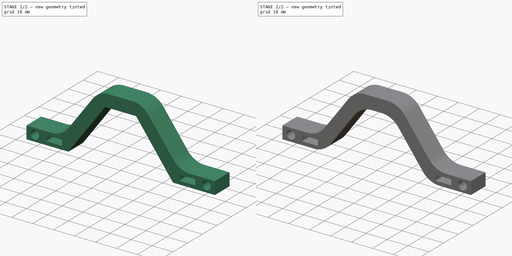
[diagram: build sequence overview — one tinted view per stage of 2, left to right]
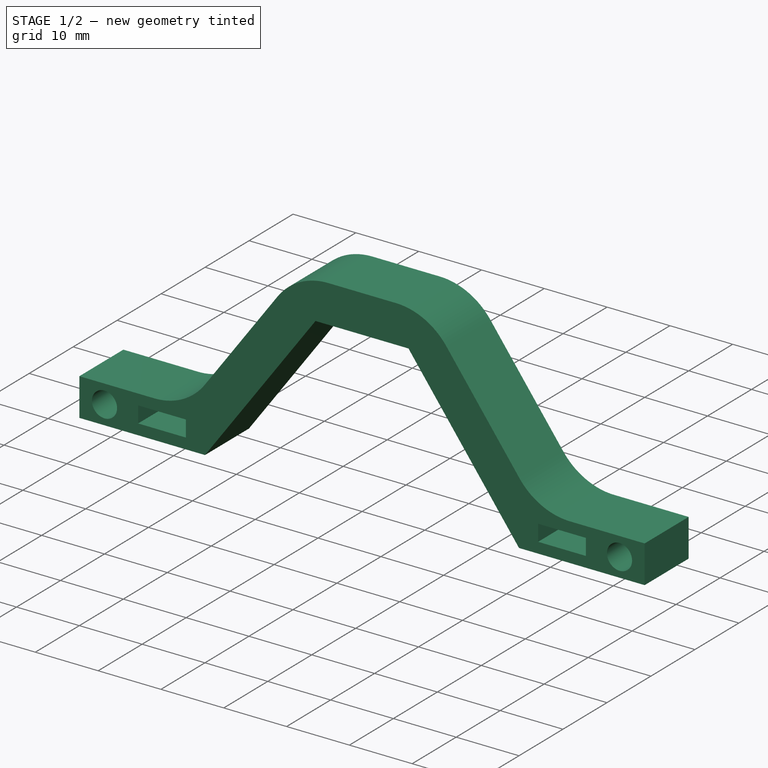
[diagram: stage 1 of 2 — iso view after this stage's code; geometry added in this stage tinted green]
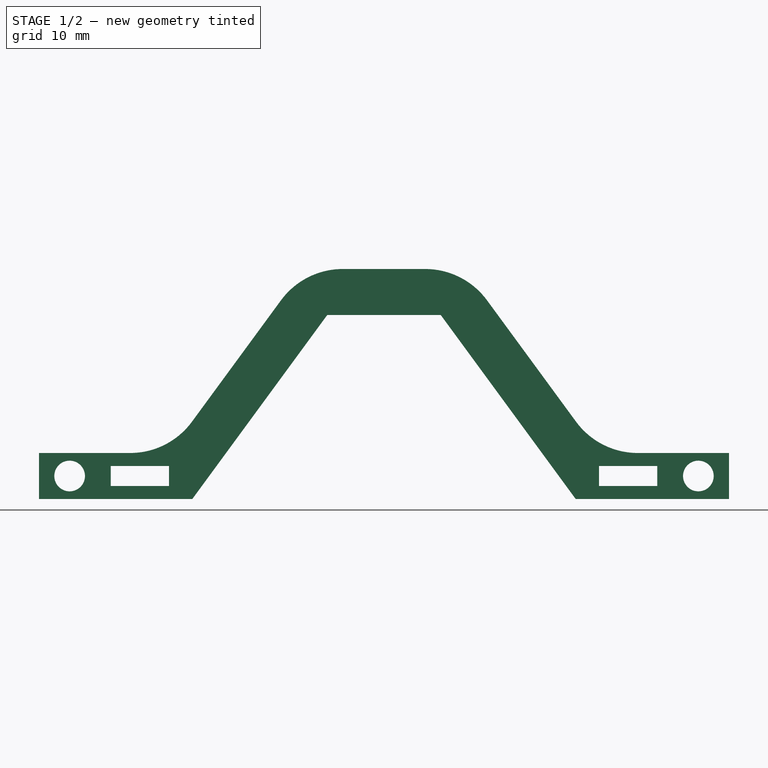
[diagram: stage 1 of 2 — front view after this stage's code; geometry added in this stage tinted green]
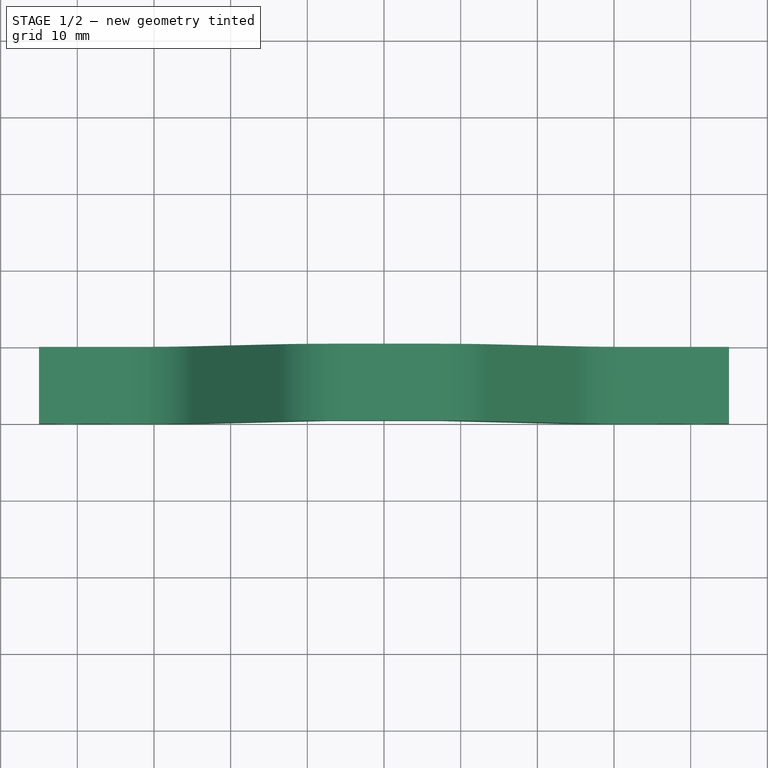
[diagram: stage 1 of 2 — top view after this stage's code; geometry added in this stage tinted green]
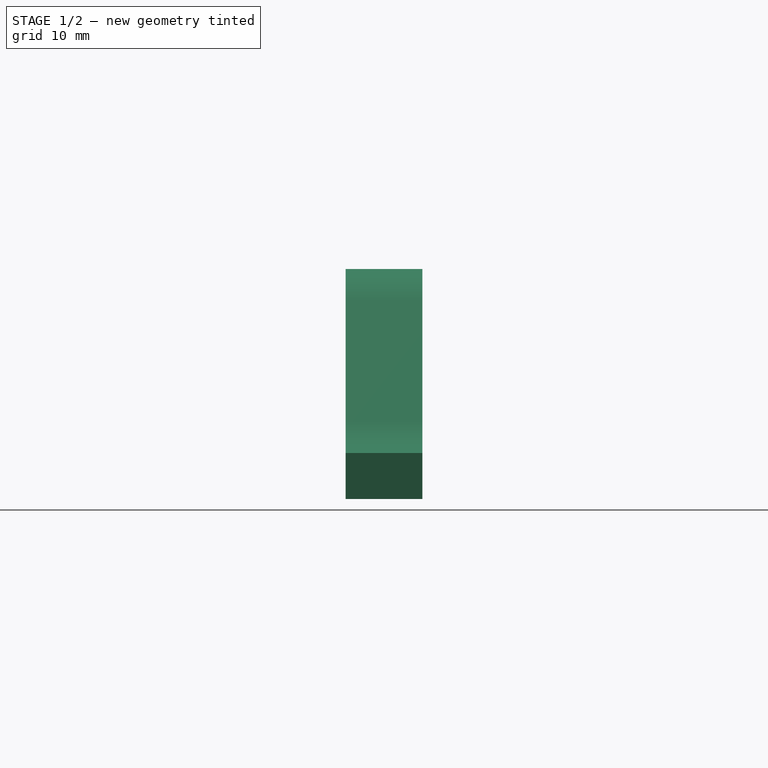
[diagram: stage 1 of 2 — right view after this stage's code; geometry added in this stage tinted green]
FCSTD DOCUMENT  (FreeCAD 1.0R38641 +678 (Git))
Label: support_Arduino_Pendule
License: All rights reserved
LicenseURL: https://en.wikipedia.org/wiki/All_rights_reserved
objects: PartDesign::Fillet×2, Sketcher::SketchObject×1, PartDesign::Pad×1, PartDesign::Body×1
note: 12 computed .brp shape members not serialized (recipe doc carries the construction recipe); baked Part::Feature solids carry a one-line shape summary decoded from their .brp

FEATURE [Sketcher::SketchObject] Sketch
  ArcFitTolerance = 1e-06
  AttachmentSupport = -> [XZ_Plane]
  FullyConstrained = true
  MakeInternals = false
  MapMode = 5
  Placement = pos=(0,0,0) rot=(1,0,0;1.5708rad)
  sketch-geometry (22):
    g0: LineSegment StartX=10.4404 StartY=30 StartZ=0 EndX=28.0404 EndY=6 EndZ=0
    g1: LineSegment StartX=28.0404 StartY=6 StartZ=0 EndX=45 EndY=6 EndZ=0
    g2: LineSegment StartX=45 StartY=6 StartZ=0 EndX=45 EndY=0 EndZ=0
    g3: LineSegment StartX=45 StartY=0 StartZ=0 EndX=25 EndY=0 EndZ=0
    g4: LineSegment StartX=25 StartY=0 StartZ=0 EndX=7.4 EndY=24 EndZ=0
    g5: LineSegment StartX=-7.4 StartY=24 StartZ=0 EndX=-25 EndY=0 EndZ=0
    g6: LineSegment StartX=-25 StartY=0 StartZ=0 EndX=-45 EndY=0 EndZ=0
    g7: LineSegment StartX=-45 StartY=0 StartZ=0 EndX=-45 EndY=6 EndZ=0
    g8: LineSegment StartX=-45 StartY=6 StartZ=0 EndX=-28.0404 EndY=6 EndZ=0
    g9: LineSegment StartX=-28.0404 StartY=6 StartZ=0 EndX=-10.4404 EndY=30 EndZ=0
    g10: Circle CenterX=-41 CenterY=3 CenterZ=0 NormalX=0 NormalY=0 NormalZ=1 AngleXU=0 Radius=2
    g11: Circle CenterX=41 CenterY=3 CenterZ=0 NormalX=0 NormalY=0 NormalZ=1 AngleXU=0 Radius=2
    g12: LineSegment StartX=-35.6404 StartY=4.3 StartZ=0 EndX=-35.6404 EndY=1.7 EndZ=0
    g13: LineSegment StartX=-35.6404 StartY=1.7 StartZ=0 EndX=-28.0404 EndY=1.7 EndZ=0
    g14: LineSegment StartX=-28.0404 StartY=1.7 StartZ=0 EndX=-28.0404 EndY=4.3 EndZ=0
    g15: LineSegment StartX=-28.0404 StartY=4.3 StartZ=0 EndX=-35.6404 EndY=4.3 EndZ=0
    g16: LineSegment StartX=28.0404 StartY=4.3 StartZ=0 EndX=28.0404 EndY=1.7 EndZ=0
    g17: LineSegment StartX=28.0404 StartY=1.7 StartZ=0 EndX=35.6404 EndY=1.7 EndZ=0
    g18: LineSegment StartX=35.6404 StartY=1.7 StartZ=0 EndX=35.6404 EndY=4.3 EndZ=0
    g19: LineSegment StartX=35.6404 StartY=4.3 StartZ=0 EndX=28.0404 EndY=4.3 EndZ=0
    g20: LineSegment StartX=-10.4404 StartY=30 StartZ=0 EndX=10.4404 EndY=30 EndZ=0
    g21: LineSegment StartX=-7.4 StartY=24 StartZ=0 EndX=7.4 EndY=24 EndZ=0
  constraints (62):
    c: Coincident(g0,g1)
    c: Horizontal(g1)
    c: Coincident(g1,g2)
    c: PointOnObject(g2,g-1)
    c: Coincident(g2,g3)
    c: PointOnObject(g3,g-1)
    c: Coincident(g3,g4)
    c: PointOnObject(g5,g-1)
    c: Coincident(g5,g6)
    c: PointOnObject(g6,g-1)
    c: Coincident(g6,g7)
    c: Vertical(g7)
    c: Coincident(g7,g8)
    c: Horizontal(g8)
    c: Coincident(g8,g9)
    c: Symmetric(g9,g0,g-2)
    c: Parallel(g9,g5)
    c: Parallel(g0,g4)
    c: Vertical(g2)
    c: Equal(g7,g2)
    c: DistanceY(g7,g7) = 6
    c: Equal(g8,g1)
    c: DistanceX(g6,g6) = 20
    c: DistanceX(g5,g3) = 50
    c: DistanceY(g-1,g9) = 30
    c: Symmetric(g11,g10,g-2)
    c: DistanceY(g-1,g10) = 3
    c: DistanceX(g6,g10) = 4
    c: Equal(g10,g11)
    c: Diameter(g10) = 4
    c: Symmetric(g4,g5,g-2)
    c: Distance(g5,g9) = 6
    c: Distance(g4,g0) = 6
    c: Coincident(g12,g13)
    c: Coincident(g13,g14)
    c: Coincident(g14,g15)
    c: Coincident(g15,g12)
    c: Vertical(g12)
    c: Vertical(g14)
    c: Horizontal(g13)
    c: Horizontal(g15)
    c: Coincident(g16,g17)
    c: Coincident(g17,g18)
    c: Coincident(g18,g19)
    c: Coincident(g19,g16)
    c: Vertical(g16)
    c: Vertical(g18)
    c: Horizontal(g17)
    c: Horizontal(g19)
    c: Equal(g15,g19)
    c: Equal(g14,g16)
    c: Symmetric(g14,g16,g-2)
    c: DistanceY(g14,g14) = 2.6
    c: DistanceY(g-1,g13) = 1.7
    c: DistanceX(g15,g15) = 7.6
    c: PointOnObject(g8,g14)
    c: Coincident(g20,g9)
    c: Coincident(g20,g0)
    c: Coincident(g21,g5)
    c: Coincident(g21,g4)
    c: DistanceX(g21,g21) = 14.8
    c: DistanceY(g4,g0) = 6
FEATURE [PartDesign::Pad] Pad  label="Pad_Main"
  Direction = (0,-1,2e-16)
  Length = 10
  Length2 = 10
  Placement = pos=(0,0,0) rot=(1,0,0;1.5708rad)
  Profile = -> Sketch
  ReferenceAxis = -> Sketch [N_Axis]
  Refine = true
  Suppressed = false
  Type = 0
FEATURE [PartDesign::Fillet] Fillet
  Base = -> Pad [Edge11,Edge14,Edge17,Edge20]
  BaseFeature = -> Pad
  Placement = pos=(0,0,0) rot=(1,0,0;1.5708rad)
  Radius = 10
  Refine = true
  SupportTransform = false
  Suppressed = false
  UseAllEdges = false
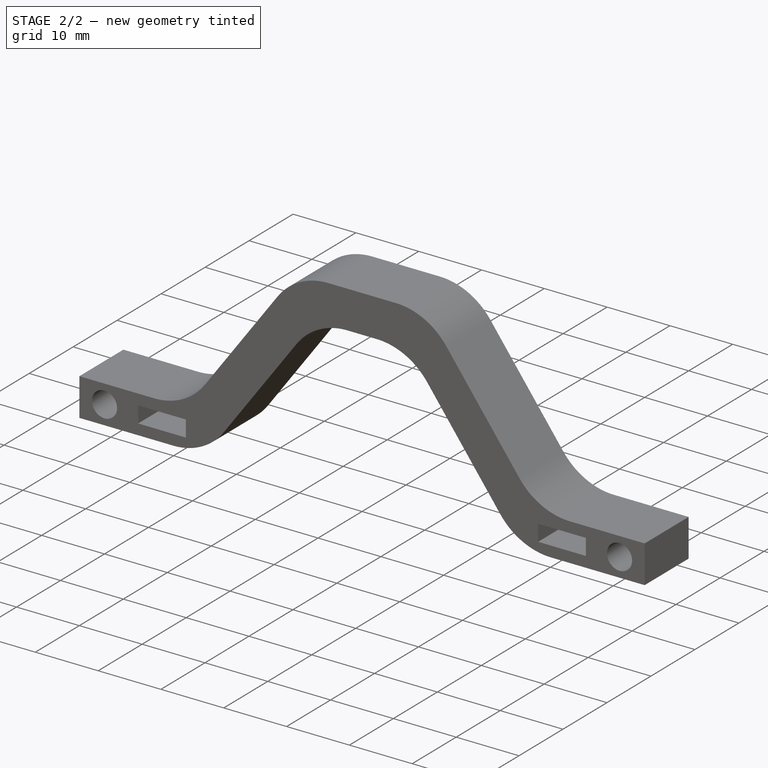
[diagram: stage 2 of 2 — iso view after this stage's code; geometry added in this stage tinted green]
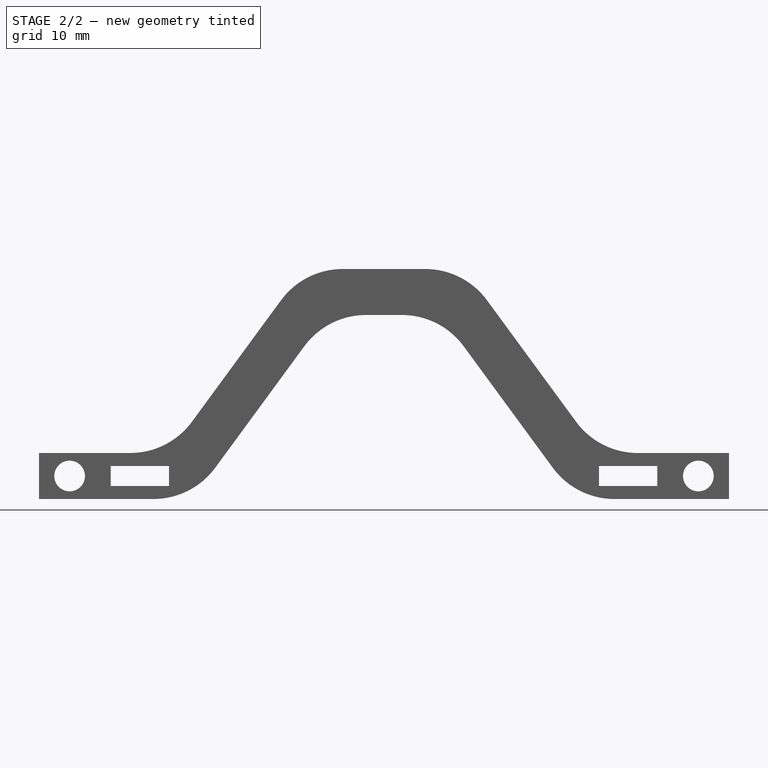
[diagram: stage 2 of 2 — front view after this stage's code; geometry added in this stage tinted green]
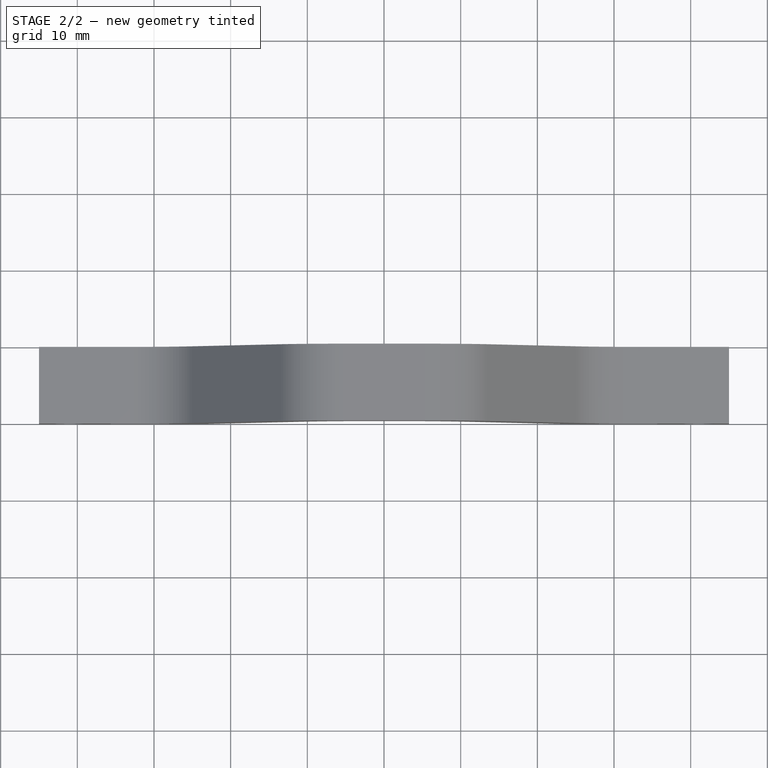
[diagram: stage 2 of 2 — top view after this stage's code; geometry added in this stage tinted green]
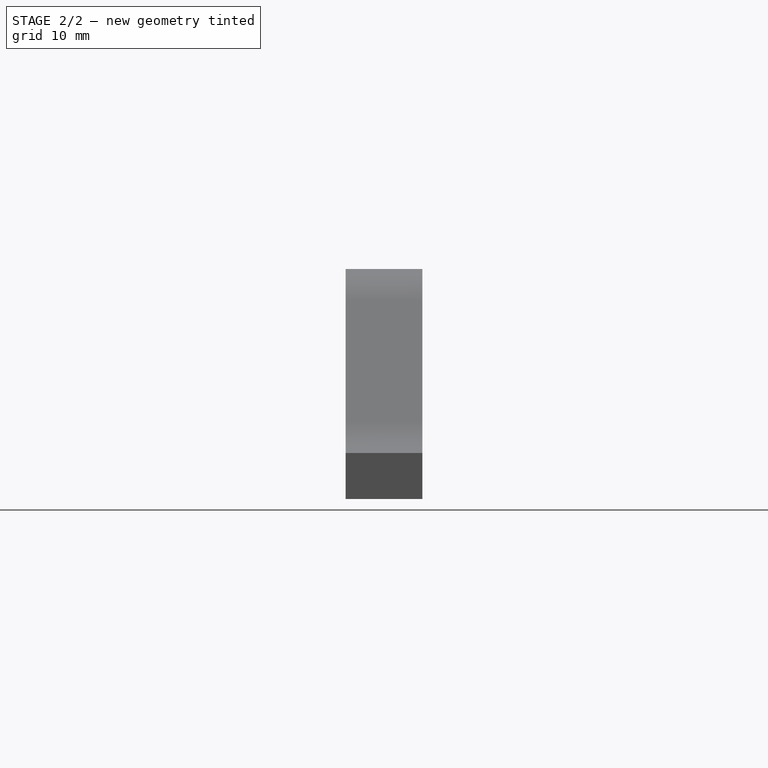
[diagram: stage 2 of 2 — right view after this stage's code; geometry added in this stage tinted green]
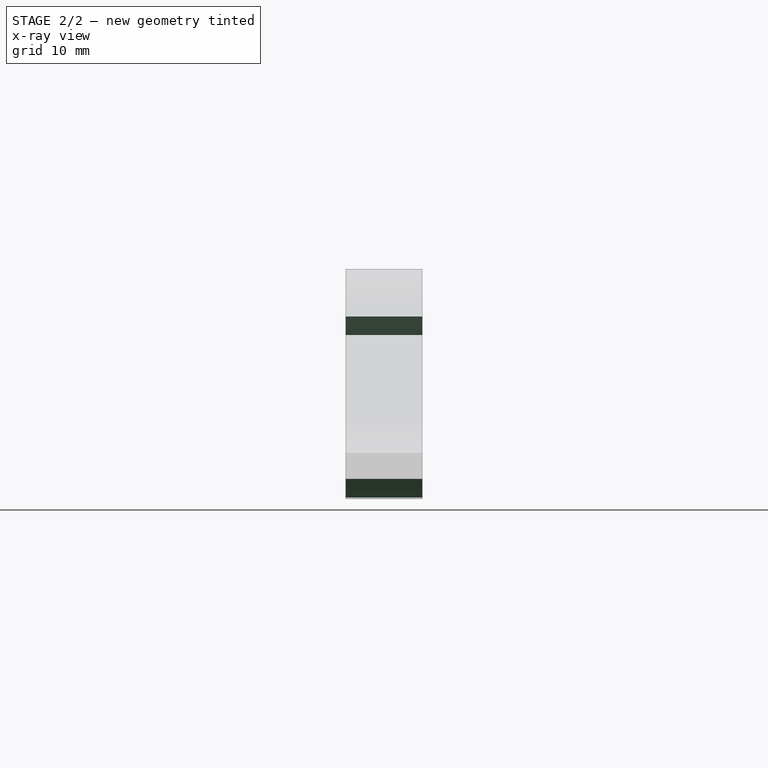
[diagram: stage 2 of 2 — x-ray composite at the right view; earlier geometry ghosted, this stage's added geometry solid]
FEATURE [PartDesign::Fillet] Fillet001
  Base = -> Fillet [Edge58,Edge60,Edge62,Edge64]
  BaseFeature = -> Fillet
  Placement = pos=(0,0,0) rot=(1,0,0;1.5708rad)
  Radius = 10
  Refine = true
  SupportTransform = false
  Suppressed = false
  UseAllEdges = false
FEATURE [PartDesign::Body] Body  label="Body_Support_Arduino"
  AllowCompound = false
  Group = -> [Sketch,Pad,Fillet,Fillet001]
  Origin = -> Origin
  Tip = -> Fillet001
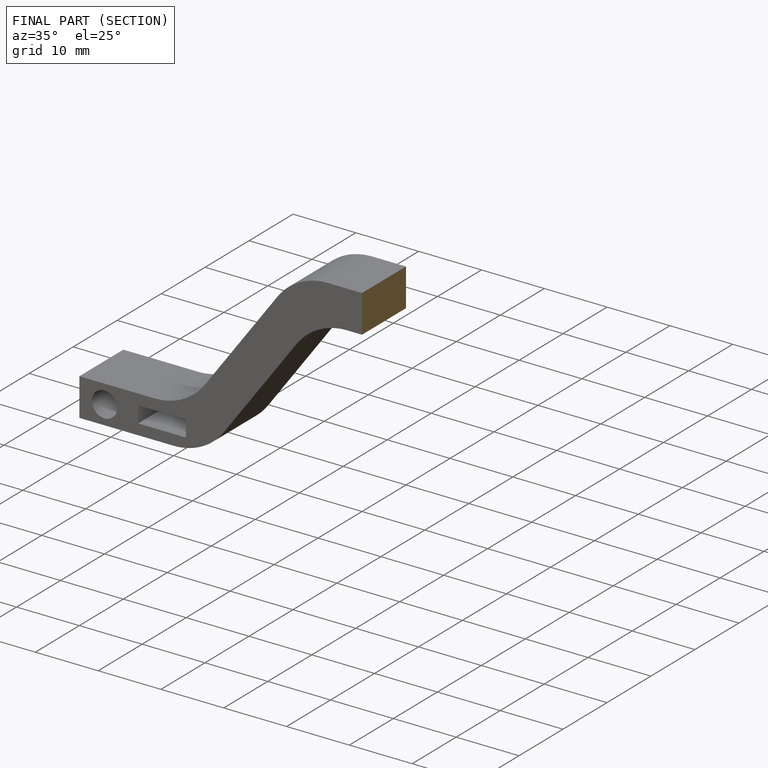
[diagram: finished part — half-section view (interior)]
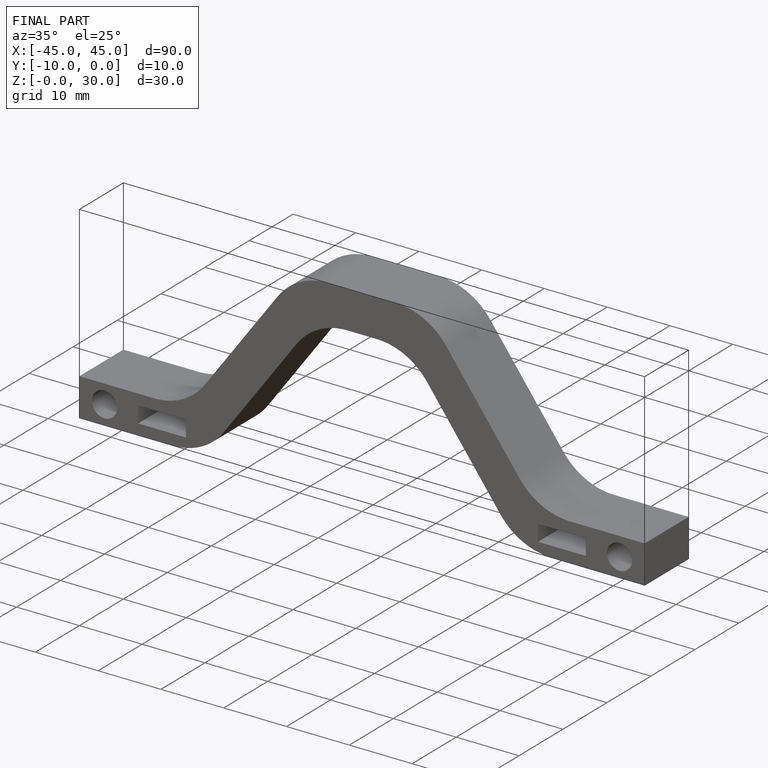
[diagram: finished part — iso view with bounding-box wireframe]
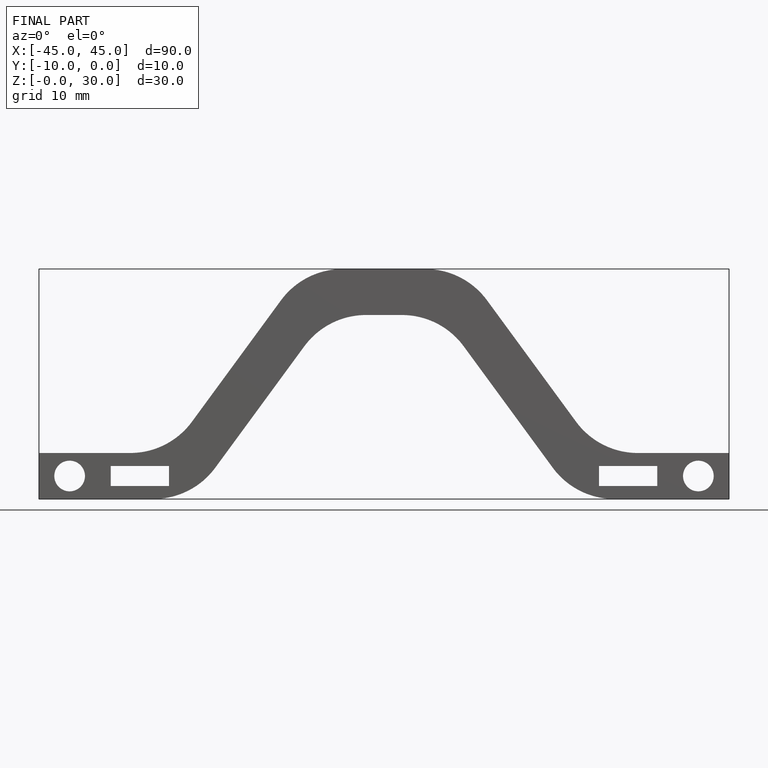
[diagram: finished part — front view with bounding-box wireframe]
